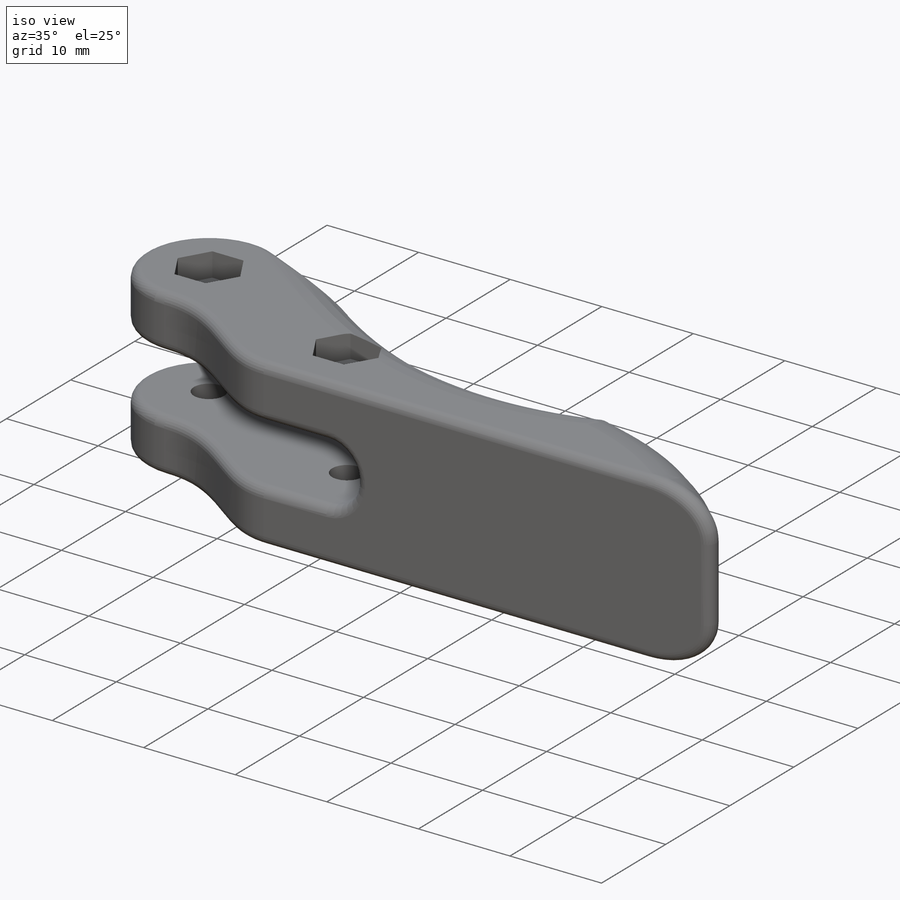
[diagram: iso view]
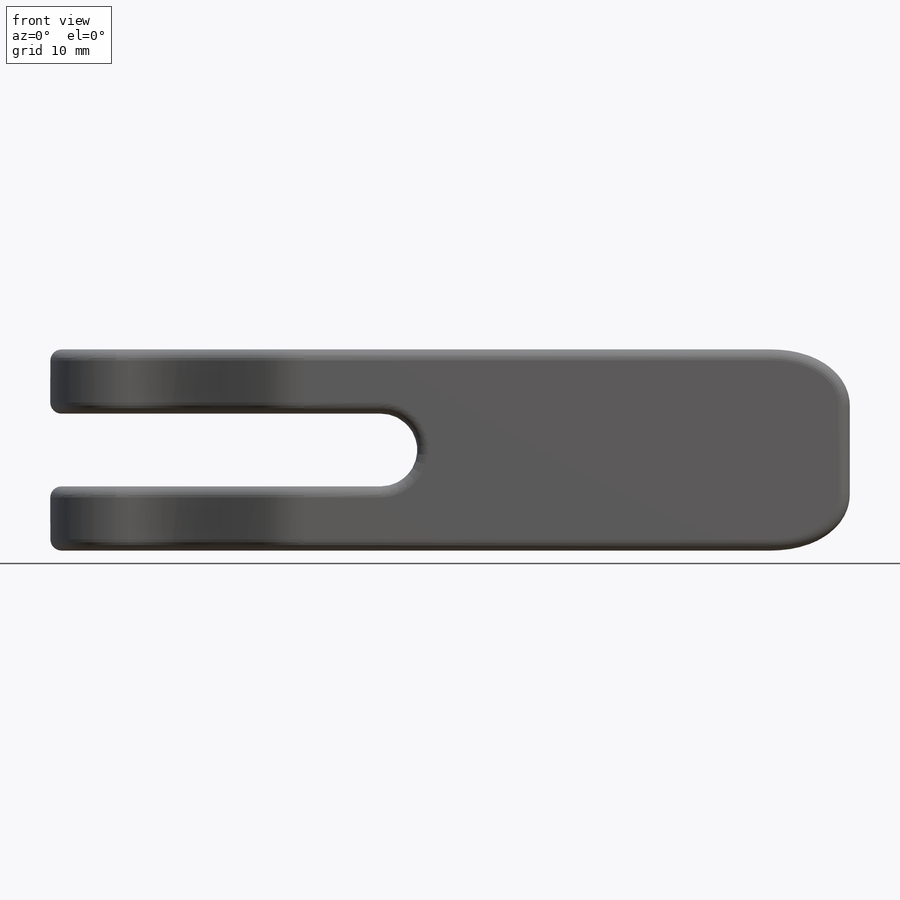
[diagram: front view]
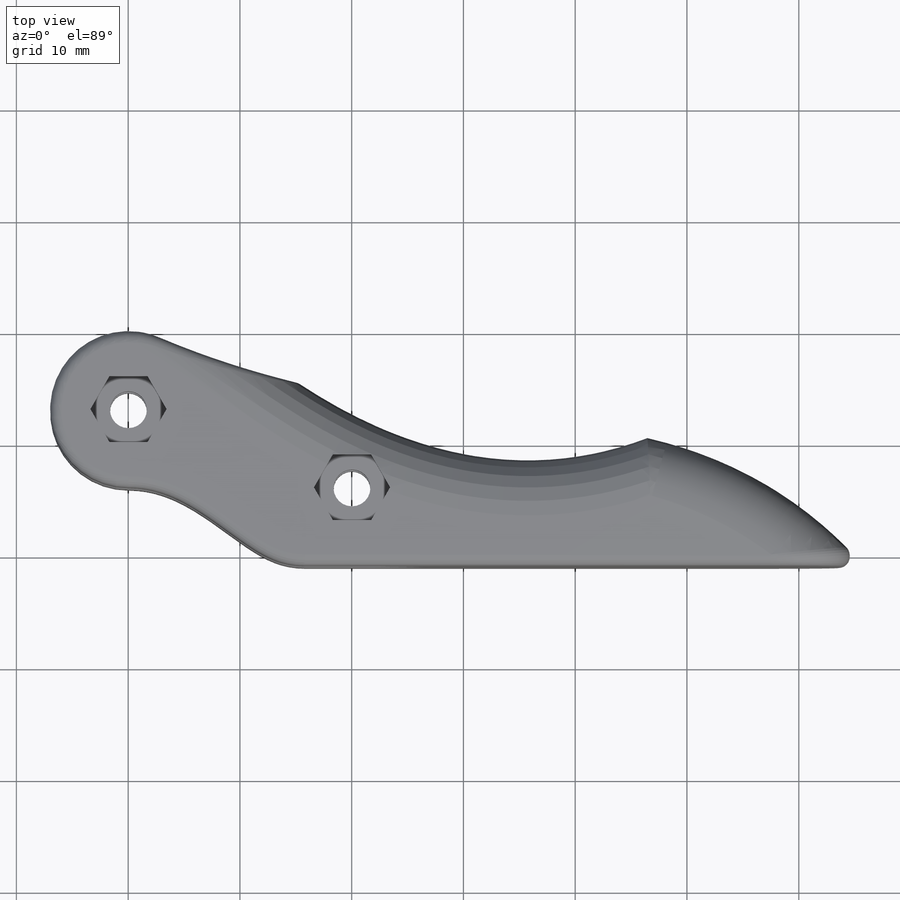
[diagram: top view]
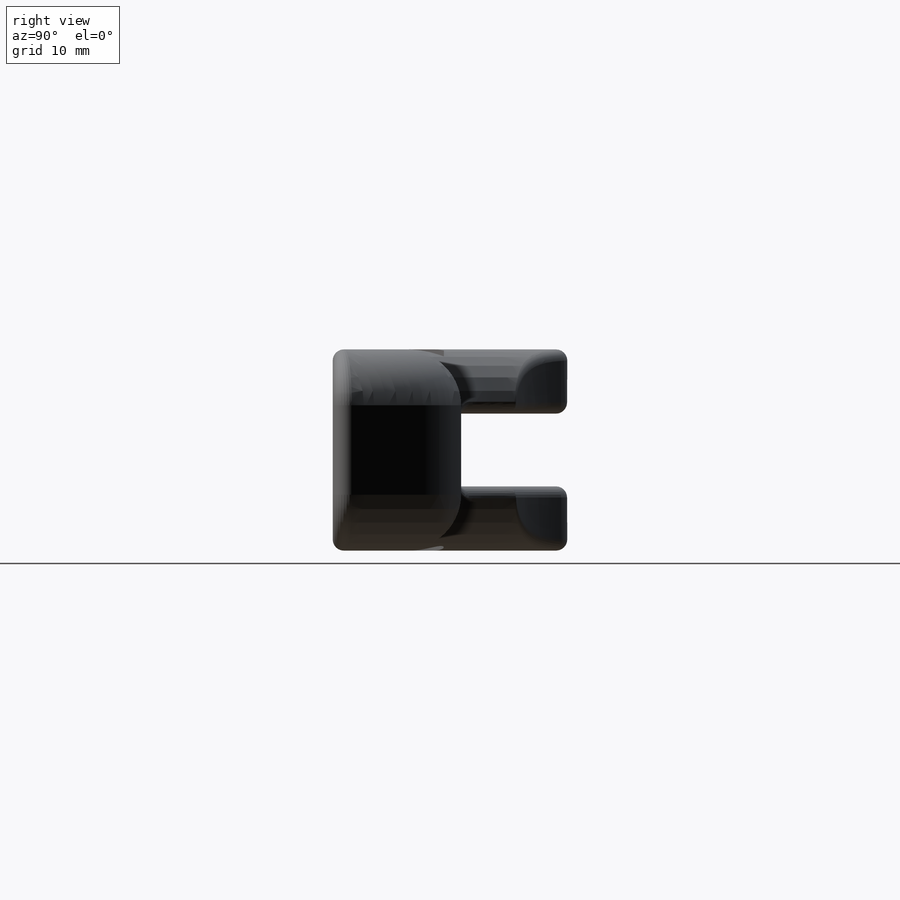
[diagram: right view]
SOLIDWORKS PART (.sldprt)
format: sldprt  version: not decoded by parser v0  size: 484,352 bytes
history: native  units: mm
features: sketch x4, plane x3, cut_extrude x3, fillet x3, material x1, extrude x1 (+9 scaffold rows collapsed)
feature tree (24):
  scaffold x9  (default folders/planes/origin — collapsed)
  material  "Material <sin especificar>"
  plane  "Alzado"
  plane  "Planta"
  plane  "Vista lateral"
  sketch  "Croquis1"  dims[c1.D5=3.3mm c1.D8=14.0mm c1.D2=11.0mm c1.D9=15.0mm c1.D1=75.0mm c2.D2=20.0mm c2.D3=10.0mm c2.D4=7.0mm c2.D6=20.0mm c2.D7=7.0mm c2.D8=1.0mm c2.D1=1.0mm]
  extrude  "Saliente-Extruir2"  Depth=18mm
  sketch  "Croquis3"  dims[D1=40.0mm D2=6.5mm]
  cut_extrude  "Cortar-Extruir3"  Depth=28mm
  fillet  "Redondeo4"  Radius=5mm
  sketch  "Croquis4"  dims[D1=5.9mm D2=5.9mm]
  cut_extrude  "Cortar-Extruir4"  Depth=3.2mm
  sketch  "Croquis5"  dims[D1=3.41mm]
  cut_extrude  "Cortar-Extruir5"  Depth=2.6mm
  fillet  "Redondeo6"  Radius=1mm
  fillet  "Redondeo7"  Radius=1mm
decode coverage: 11 of 11 modeling features carry decoded parameters
note: suppression state not decoded; provenance and decode notes live in map.json
